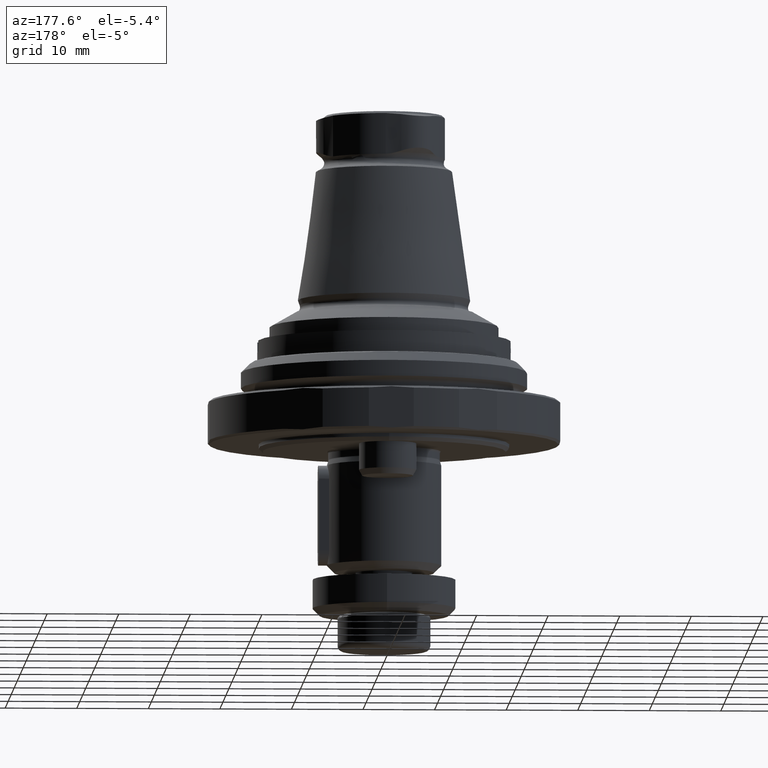
[diagram: clean part render]
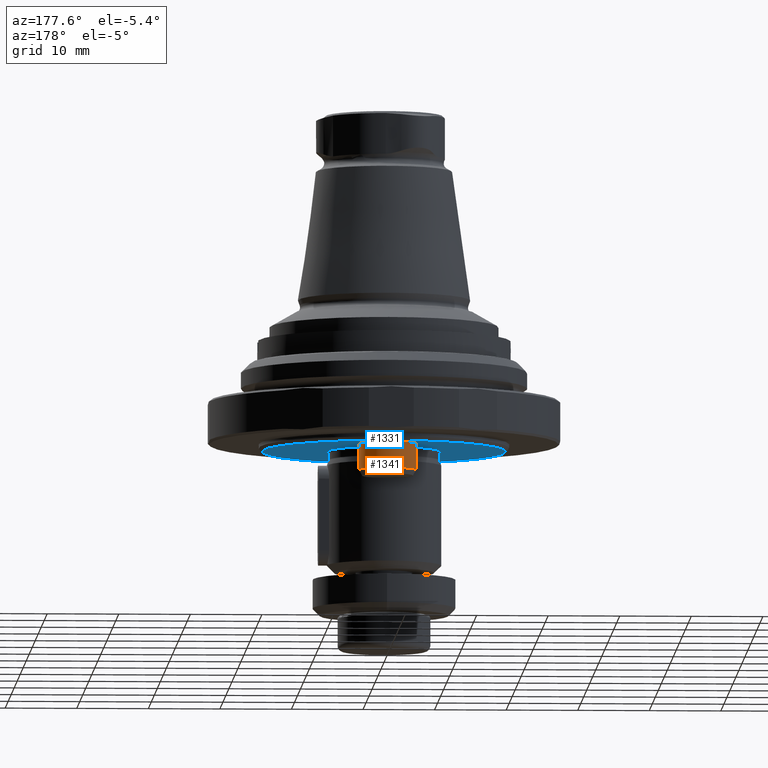
[diagram: same view with the hole feature highlighted: cylindrical wall and planar end face, labeled with their STEP entity ids]
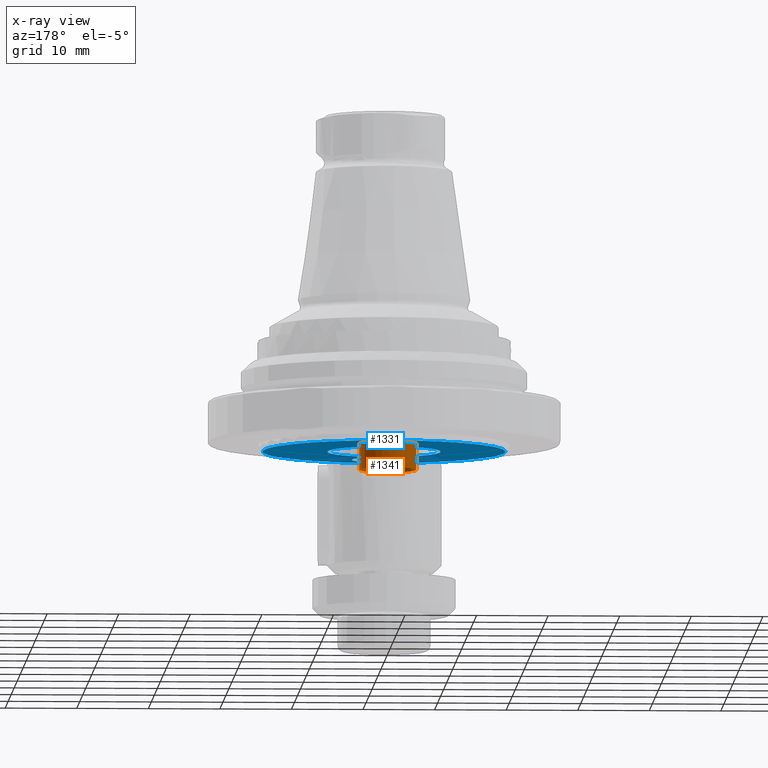
[diagram: x-ray of the same camera — body ghosted, the hole faces saturated]
A machine part, auxiliary view. The highlighted faces form one hole feature of diameter 8 mm: the cylindrical wall (entity #1341, orange) and its adjacent planar end face (entity #1331, blue) — they share a circular edge in the B-rep.
The next image is the same camera in x-ray (body ghosted, the hole faces saturated) — the bore reads through the body.
Wall:
#266=ORIENTED_EDGE('',*,*,#620,.T.);
#267=ORIENTED_EDGE('',*,*,#605,.F.);
#605=EDGE_CURVE('',#788,#788,#921,.T.);
#620=EDGE_CURVE('',#801,#801,#930,.T.);
#788=VERTEX_POINT('',#2058);
#801=VERTEX_POINT('',#2112);
#921=CIRCLE('',#1448,4.);
#930=CIRCLE('',#1467,4.);
#1026=EDGE_LOOP('',(#266));
#1027=EDGE_LOOP('',(#267));
#1172=FACE_BOUND('',#1026,.T.);
#1173=FACE_BOUND('',#1027,.T.);
#1296=CYLINDRICAL_SURFACE('',#1466,4.);
#1341=ADVANCED_FACE('',(#1172,#1173),#1296,.T.);
#1448=AXIS2_PLACEMENT_3D('',#2057,#1642,#1643);
#1466=AXIS2_PLACEMENT_3D('',#2110,#1680,#1681);
#1467=AXIS2_PLACEMENT_3D('',#2111,#1682,#1683);
#1642=DIRECTION('',(5.55111512312578E-17,0.,1.));
#1643=DIRECTION('',(1.66533453693773E-16,-1.,-9.24446373305873E-33));
#1680=DIRECTION('',(5.55111512312578E-17,0.,1.));
#1681=DIRECTION('',(1.66533453693773E-16,-1.,-9.24446373305873E-33));
#1682=DIRECTION('',(5.55111512312578E-17,0.,1.));
#1683=DIRECTION('',(1.66533453693773E-16,-1.,-9.24446373305873E-33));
#2057=CARTESIAN_POINT('',(-9.99200722162641E-16,12.2,-7.99999999999999));
#2058=CARTESIAN_POINT('',(-3.33066907387547E-16,8.2,-7.99999999999999));
#2110=CARTESIAN_POINT('',(-1.28969714477137E-15,12.2,-13.2331183224525));
#2111=CARTESIAN_POINT('',(-1.20459198171829E-15,12.2,-11.7));
#2112=CARTESIAN_POINT('',(-5.38458166943201E-16,8.2,-11.7));
End face:
#172=PLANE('',#1446);
#239=ORIENTED_EDGE('',*,*,#604,.T.);
#240=ORIENTED_EDGE('',*,*,#603,.F.);
#241=ORIENTED_EDGE('',*,*,#602,.T.);
#242=ORIENTED_EDGE('',*,*,#605,.T.);
#602=EDGE_CURVE('',#785,#785,#918,.T.);
#603=EDGE_CURVE('',#786,#786,#919,.F.);
#604=EDGE_CURVE('',#787,#787,#920,.T.);
#605=EDGE_CURVE('',#788,#788,#921,.T.);
#785=VERTEX_POINT('',#2050);
#786=VERTEX_POINT('',#2053);
#787=VERTEX_POINT('',#2056);
#788=VERTEX_POINT('',#2058);
#918=CIRCLE('',#1443,17.);
#919=CIRCLE('',#1445,7.94185720322229);
#920=CIRCLE('',#1447,4.);
#921=CIRCLE('',#1448,4.);
#1006=EDGE_LOOP('',(#239));
#1007=EDGE_LOOP('',(#240));
#1008=EDGE_LOOP('',(#241));
#1009=EDGE_LOOP('',(#242));
#1152=FACE_BOUND('',#1006,.T.);
#1153=FACE_BOUND('',#1007,.T.);
#1154=FACE_BOUND('',#1008,.T.);
#1155=FACE_BOUND('',#1009,.T.);
#1331=ADVANCED_FACE('',(#1152,#1153,#1154,#1155),#172,.T.);
#1443=AXIS2_PLACEMENT_3D('',#2049,#1632,#1633);
#1445=AXIS2_PLACEMENT_3D('',#2052,#1636,#1637);
#1446=AXIS2_PLACEMENT_3D('',#2054,#1638,#1639);
#1447=AXIS2_PLACEMENT_3D('',#2055,#1640,#1641);
#1448=AXIS2_PLACEMENT_3D('',#2057,#1642,#1643);
#1632=DIRECTION('',(-5.55111512312578E-17,0.,-1.));
#1633=DIRECTION('',(0.,1.,0.));
#1636=DIRECTION('',(5.55111512312578E-17,0.,1.));
#1637=DIRECTION('',(0.,-1.,0.));
#1638=DIRECTION('',(-5.55111512312578E-17,0.,-1.));
#1639=DIRECTION('',(0.,1.,0.));
#1640=DIRECTION('',(5.55111512312578E-17,0.,1.));
#1641=DIRECTION('',(1.66533453693773E-16,-1.,-9.24446373305873E-33));
#1642=DIRECTION('',(5.55111512312578E-17,0.,1.));
#1643=DIRECTION('',(1.66533453693773E-16,-1.,-9.24446373305873E-33));
#2049=CARTESIAN_POINT('',(-9.99200722162641E-16,0.,-8.));
#2050=CARTESIAN_POINT('',(-9.99200722162641E-16,17.,-8.));
#2052=CARTESIAN_POINT('',(-9.99200722162641E-16,0.,-8.));
#2053=CARTESIAN_POINT('',(-9.99200722162641E-16,-7.94185720322229,-8.));
#2054=CARTESIAN_POINT('',(-9.99200722162641E-16,8.9,-8.));
#2055=CARTESIAN_POINT('',(-9.99200722162641E-16,-12.2,-7.99999999999999));
#2056=CARTESIAN_POINT('',(-3.33066907387547E-16,-16.2,-7.99999999999999));
#2057=CARTESIAN_POINT('',(-9.99200722162641E-16,12.2,-7.99999999999999));
#2058=CARTESIAN_POINT('',(-3.33066907387547E-16,8.2,-7.99999999999999));